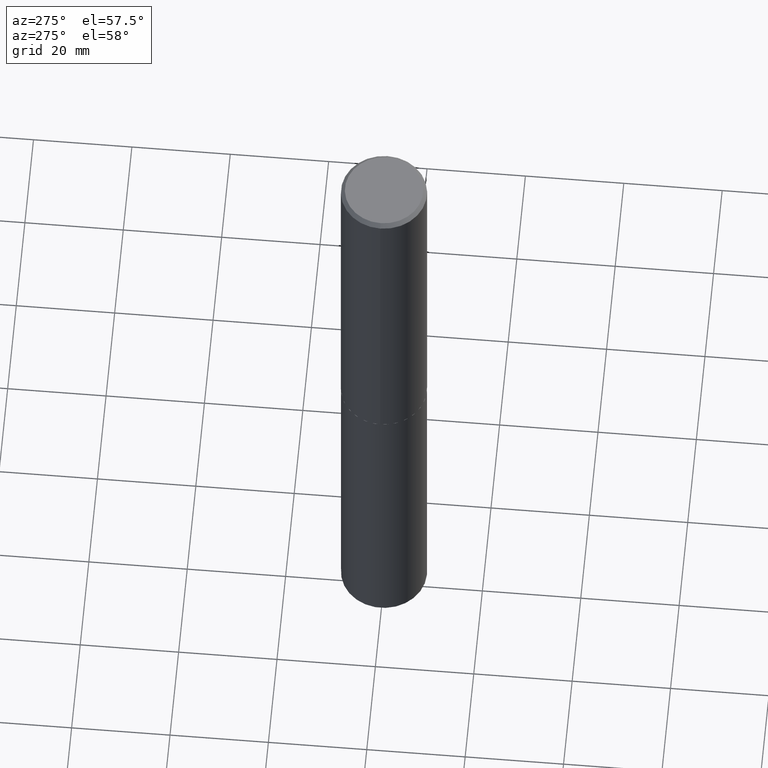
[diagram: clean part render]
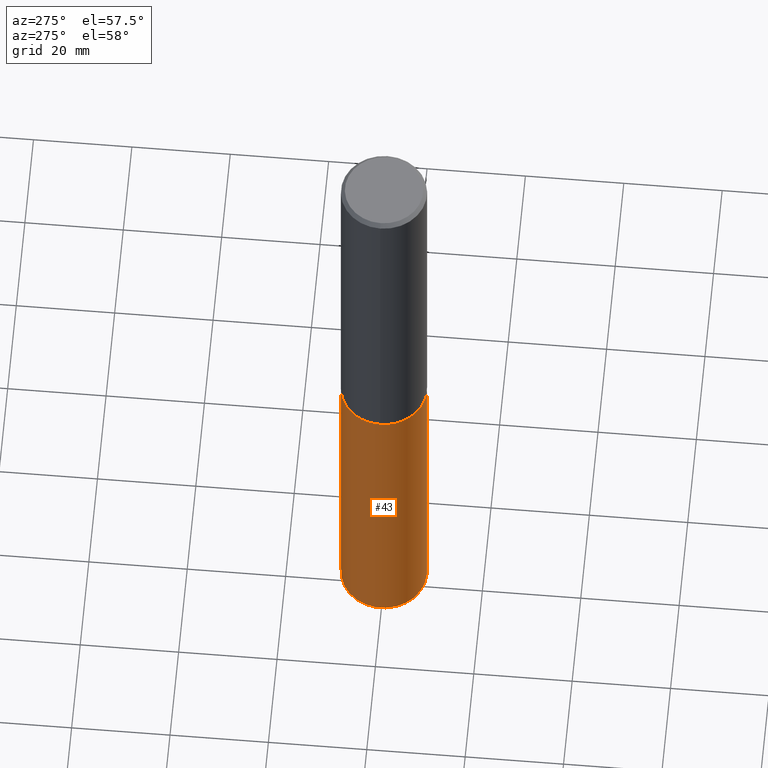
[diagram: same view with one face highlighted and labeled with its STEP entity id]
A machine part, auxiliary view. The second image highlights one B-rep face of the part: STEP entity #43.
In plain terms, the highlighted cylindrical surface (partial cylindrical patch) has radius 8.7312 mm, axis along (-0, 0, 1).
Its self-contained STEP definition (entity closure, byte-faithful):
#11 = CARTESIAN_POINT ( 'NONE',  ( -2.400393420454582001E-15, -0.3437500000000102141, -2.937499999999998224 ) ) ;
#15 = DIRECTION ( 'NONE',  ( -6.982962677686265922E-15, -1.000000000000000000, 3.178877665354778874E-15 ) ) ;
#17 = VECTOR ( 'NONE', #377, 39.37007874015748143 ) ;
#20 = ORIENTED_EDGE ( 'NONE', *, *, #130, .T. ) ;
#40 = VERTEX_POINT ( 'NONE', #388 ) ;
#43 = ADVANCED_FACE ( 'NONE', ( #104 ), #71, .T. ) ;
#45 = CIRCLE ( 'NONE', #96, 0.3437500000000000000 ) ;
#58 = EDGE_CURVE ( 'NONE', #123, #286, #185, .T. ) ;
#70 = DIRECTION ( 'NONE',  ( -6.982962677686265922E-15, -1.000000000000000000, 3.178877665354778874E-15 ) ) ;
#71 = CYLINDRICAL_SURFACE ( 'NONE', #357, 0.3437500000000000000 ) ;
#75 = EDGE_LOOP ( 'NONE', ( #199, #133, #20, #150 ) ) ;
#93 = EDGE_CURVE ( 'NONE', #123, #40, #45, .T. ) ;
#96 = AXIS2_PLACEMENT_3D ( 'NONE', #283, #140, #15 ) ;
#103 = CIRCLE ( 'NONE', #296, 0.3437500000000000000 ) ;
#104 = FACE_OUTER_BOUND ( 'NONE', #75, .T. ) ;
#112 = DIRECTION ( 'NONE',  ( -2.445019328993523042E-29, 3.492125015764188805E-15, 1.000000000000000000 ) ) ;
#123 = VERTEX_POINT ( 'NONE', #207 ) ;
#124 = CARTESIAN_POINT ( 'NONE',  ( 2.442490654175483228E-15, 0.3437499999999897304, -2.937500000000000444 ) ) ;
#127 = VERTEX_POINT ( 'NONE', #11 ) ;
#130 = EDGE_CURVE ( 'NONE', #40, #127, #144, .T. ) ;
#133 = ORIENTED_EDGE ( 'NONE', *, *, #93, .T. ) ;
#140 = DIRECTION ( 'NONE',  ( -2.445019328993523323E-29, 3.492125015764188805E-15, 1.000000000000000000 ) ) ;
#142 = CARTESIAN_POINT ( 'NONE',  ( -2.400393420454582001E-15, -0.3437500000000102141, -2.937499999999998224 ) ) ;
#144 = LINE ( 'NONE', #142, #17 ) ;
#150 = ORIENTED_EDGE ( 'NONE', *, *, #190, .F. ) ;
#169 = CARTESIAN_POINT ( 'NONE',  ( 7.183564618168836511E-29, -1.025622643285173815E-14, -2.937499999999999556 ) ) ;
#179 = DIRECTION ( 'NONE',  ( -2.445019328993523323E-29, 3.492125015764188805E-15, 1.000000000000000000 ) ) ;
#182 = CARTESIAN_POINT ( 'NONE',  ( 2.442490654175415781E-15, 0.3437499999999897304, -2.937500000000000444 ) ) ;
#185 = LINE ( 'NONE', #182, #339 ) ;
#190 = EDGE_CURVE ( 'NONE', #286, #127, #103, .T. ) ;
#199 = ORIENTED_EDGE ( 'NONE', *, *, #58, .F. ) ;
#207 = CARTESIAN_POINT ( 'NONE',  ( 2.442490654175483228E-15, 0.3437499999999802935, -5.657892465101804547 ) ) ;
#231 = DIRECTION ( 'NONE',  ( -6.982962677686265922E-15, -1.000000000000000000, 3.178877665354778874E-15 ) ) ;
#278 = DIRECTION ( 'NONE',  ( -2.445019328993523323E-29, 3.492125015764188805E-15, 1.000000000000000000 ) ) ;
#283 = CARTESIAN_POINT ( 'NONE',  ( 1.383497677779108676E-28, -1.975617701293015879E-14, -5.657892465101803658 ) ) ;
#286 = VERTEX_POINT ( 'NONE', #124 ) ;
#296 = AXIS2_PLACEMENT_3D ( 'NONE', #330, #278, #70 ) ;
#330 = CARTESIAN_POINT ( 'NONE',  ( 7.183564618168836511E-29, -1.025622643285173815E-14, -2.937499999999999556 ) ) ;
#339 = VECTOR ( 'NONE', #112, 39.37007874015748143 ) ;
#357 = AXIS2_PLACEMENT_3D ( 'NONE', #169, #179, #231 ) ;
#377 = DIRECTION ( 'NONE',  ( -2.445019328993523042E-29, 3.492125015764188805E-15, 1.000000000000000000 ) ) ;
#388 = CARTESIAN_POINT ( 'NONE',  ( -2.400393420454516131E-15, -0.3437500000000198730, -5.657892465101801882 ) ) ;